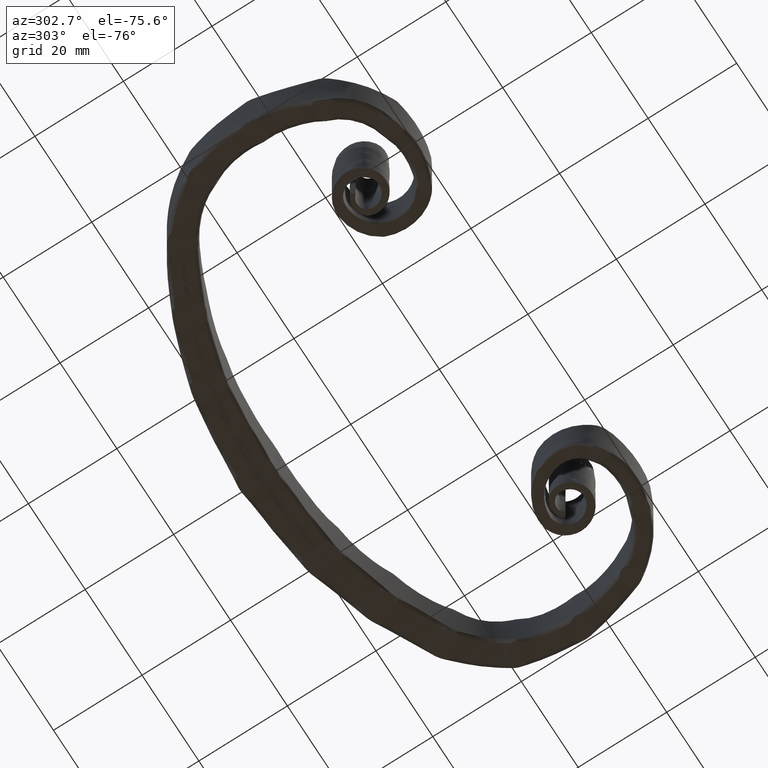
[diagram: clean part render]
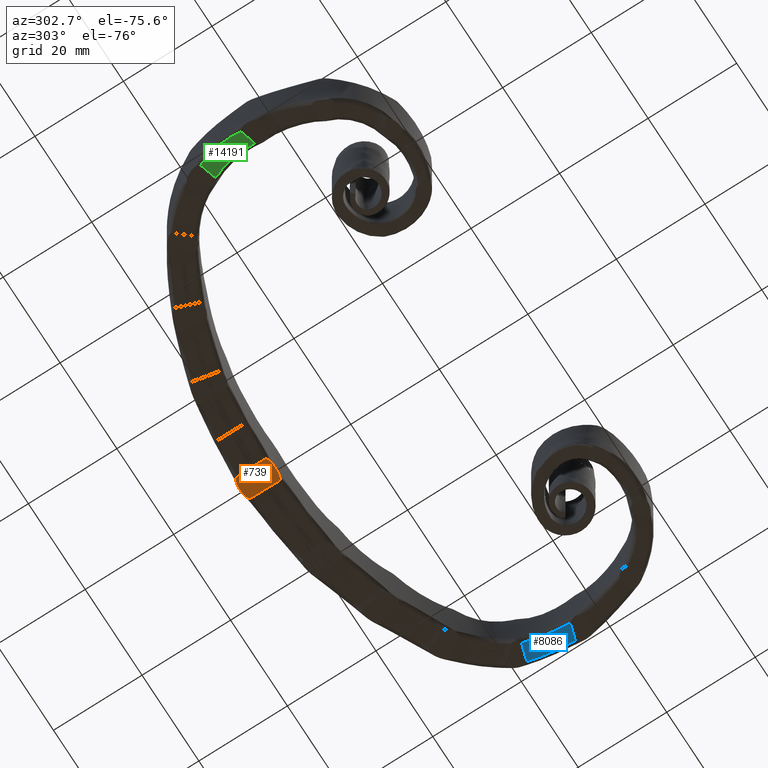
[diagram: same view with three faces highlighted in distinct colors, each labeled with its STEP entity id]
A machine part, auxiliary view with three faces highlighted in distinct colors.
Their STEP definitions:

[orange] entity #739 — the highlighted planar face has unit normal (0, 0, -1).
#39 = VERTEX_POINT ( 'NONE', #13460 ) ;
#733 = VECTOR ( 'NONE', #3460, 1000.000000000000000 ) ;
#739 = ADVANCED_FACE ( 'NONE', ( #3319 ), #15781, .T. ) ;
#801 = EDGE_CURVE ( 'NONE', #4417, #14457, #7179, .T. ) ;
#846 = CARTESIAN_POINT ( 'NONE',  ( 1.799667259817131271, 64.67704696247369611, -7.999999999999998224 ) ) ;
#903 = CARTESIAN_POINT ( 'NONE',  ( 2.387793784955803744, 64.16242560402947959, -8.000000000000000000 ) ) ;
#1032 = CARTESIAN_POINT ( 'NONE',  ( 2.435410458790838284, 57.66987541362531999, -7.999999999999994671 ) ) ;
#1075 = CARTESIAN_POINT ( 'NONE',  ( -2.618416260169672327, 64.05424198271327896, -7.999999999999994671 ) ) ;
#2048 = CARTESIAN_POINT ( 'NONE',  ( -0.08908066043442440518, 57.00005378626904928, -8.000000000000000000 ) ) ;
#2062 = CARTESIAN_POINT ( 'NONE',  ( -2.389685817727293049, 57.37523646133635680, -8.000000000000000000 ) ) ;
#2154 = VERTEX_POINT ( 'NONE', #6837 ) ;
#2184 = CARTESIAN_POINT ( 'NONE',  ( -2.163267278763167489, 57.23291819444619932, -8.000000000000000000 ) ) ;
#2237 = CARTESIAN_POINT ( 'NONE',  ( 0.7828630363283097804, 56.98405389752460337, -7.999999999999998224 ) ) ;
#2320 = CARTESIAN_POINT ( 'NONE',  ( -2.618416260169672327, 57.74192223055462136, -7.999999999999994671 ) ) ;
#2410 = ORIENTED_EDGE ( 'NONE', *, *, #9199, .T. ) ;
#2456 = CARTESIAN_POINT ( 'NONE',  ( 1.306455259439570415, 64.85155044938260005, -8.000000000000001776 ) ) ;
#2515 = CARTESIAN_POINT ( 'NONE',  ( -2.578344999929889081, 64.22825360911838288, -8.000000000000001776 ) ) ;
#2552 = CARTESIAN_POINT ( 'NONE',  ( -0.1184162601696624045, 65.00000000000000000, -8.000000000000000000 ) ) ;
#2950 = VERTEX_POINT ( 'NONE', #3985 ) ;
#3107 = VERTEX_POINT ( 'NONE', #12764 ) ;
#3292 = VERTEX_POINT ( 'NONE', #2320 ) ;
#3319 = FACE_OUTER_BOUND ( 'NONE', #3470, .T. ) ;
#3400 = CARTESIAN_POINT ( 'NONE',  ( 2.859460689795245703, -0.1495224214161162135, -7.999999999999994671 ) ) ;
#3453 = CARTESIAN_POINT ( 'NONE',  ( -0.8558266717507175825, 64.95197593053265450, -8.000000000000000000 ) ) ;
#3460 = DIRECTION ( 'NONE',  ( -0.007333850625920125023, 0.9999731069558804863, -7.523163845262640051E-37 ) ) ;
#3470 = EDGE_LOOP ( 'NONE', ( #2410, #11807, #4064, #4404, #9097, #10712, #6877, #5275, #10127, #6827 ) ) ;
#3500 = B_SPLINE_CURVE_WITH_KNOTS ( 'NONE', 3,
 ( #15855, #17115, #7465, #10379, #2062, #2184, #4721, #3539, #14226, #14417, #17239, #9075 ),
 .UNSPECIFIED., .F., .F.,
 ( 4, 2, 2, 2, 2, 4 ),
 ( 0.000000000000000000, 0.0002672670931287241479, 0.0005345341862574482959, 0.001069068372514897676, 0.001603602558772346948, 0.002138136745029796219 ),
 .UNSPECIFIED. ) ;
#3539 = CARTESIAN_POINT ( 'NONE',  ( -1.657098939495853740, 57.06632354337892821, -8.000000000000000000 ) ) ;
#3633 = CARTESIAN_POINT ( 'NONE',  ( -2.034079707715324759, 64.66298870964035927, -8.000000000000000000 ) ) ;
#3670 = CARTESIAN_POINT ( 'NONE',  ( 0.3736745635584453051, 56.99160782719640395, -8.000000000000000000 ) ) ;
#3772 = B_SPLINE_CURVE_WITH_KNOTS ( 'NONE', 3,
 ( #10279, #9094, #3670, #13172 ),
 .UNSPECIFIED., .F., .F.,
 ( 4, 4 ),
 ( 0.000000000000000000, 0.004350486140915422323 ),
 .UNSPECIFIED. ) ;
#3868 = EDGE_CURVE ( 'NONE', #3292, #14457, #3500, .T. ) ;
#3985 = CARTESIAN_POINT ( 'NONE',  ( -0.8558266717507175825, 64.95197593053265450, -8.000000000000000000 ) ) ;
#4064 = ORIENTED_EDGE ( 'NONE', *, *, #9592, .F. ) ;
#4333 = LINE ( 'NONE', #3400, #733 ) ;
#4404 = ORIENTED_EDGE ( 'NONE', *, *, #15221, .T. ) ;
#4417 = VERTEX_POINT ( 'NONE', #13795 ) ;
#4707 = B_SPLINE_CURVE_WITH_KNOTS ( 'NONE', 3,
 ( #15306, #5837, #10076, #9968 ),
 .UNSPECIFIED., .F., .F.,
 ( 4, 4 ),
 ( 0.000000000000000000, 0.004242691725775341559 ),
 .UNSPECIFIED. ) ;
#4721 = CARTESIAN_POINT ( 'NONE',  ( -1.997193237981633951, 57.16804899150837116, -8.000000000000000000 ) ) ;
#4739 = CARTESIAN_POINT ( 'NONE',  ( 0.6193265215525823875, 64.95738527985461985, -8.000000000000000000 ) ) ;
#4815 = CARTESIAN_POINT ( 'NONE',  ( -1.031320597229749891, 64.94052248029731800, -8.000000000000000000 ) ) ;
#4995 = CARTESIAN_POINT ( 'NONE',  ( 0.7948997253589114020, 64.94721918387261894, -8.000000000000001776 ) ) ;
#5247 = CARTESIAN_POINT ( 'NONE',  ( -0.3204210792814157771, 56.99413403145693735, -8.000000000000000000 ) ) ;
#5275 = ORIENTED_EDGE ( 'NONE', *, *, #11150, .F. ) ;
#5662 = CARTESIAN_POINT ( 'NONE',  ( -0.3642224765919079843, 64.98400885519093606, -8.000000000000000000 ) ) ;
#5837 = CARTESIAN_POINT ( 'NONE',  ( 0.1275006224425272450, 64.98581199131567132, -8.000000000000000000 ) ) ;
#6152 = B_SPLINE_CURVE_WITH_KNOTS ( 'NONE', 3,
 ( #3453, #4815, #13192, #13246, #13138, #3633, #14627, #6478, #15889, #2515, #6364, #1075 ),
 .UNSPECIFIED., .F., .F.,
 ( 4, 2, 2, 2, 2, 4 ),
 ( 2.276824562219559311E-18, 0.0005199267569084939800, 0.001039853513816985792, 0.001559780270725477386, 0.001819743649179722533, 0.002079707027633968114 ),
 .UNSPECIFIED. ) ;
#6306 = CARTESIAN_POINT ( 'NONE',  ( 2.238564288610711994, 64.38673862294498917, -8.000000000000000000 ) ) ;
#6364 = CARTESIAN_POINT ( 'NONE',  ( -2.618416260169668774, 64.14406795884652013, -8.000000000000001776 ) ) ;
#6478 = CARTESIAN_POINT ( 'NONE',  ( -2.405615313714081882, 64.42720292781019964, -8.000000000000000000 ) ) ;
#6827 = ORIENTED_EDGE ( 'NONE', *, *, #3868, .F. ) ;
#6837 = CARTESIAN_POINT ( 'NONE',  ( 2.434746165412473129, 57.76045204892510299, -7.999999999999994671 ) ) ;
#6877 = ORIENTED_EDGE ( 'NONE', *, *, #9760, .T. ) ;
#7147 = CARTESIAN_POINT ( 'NONE',  ( -2.618416260169672327, -0.1696096571686817045, -7.999999999999994671 ) ) ;
#7179 = B_SPLINE_CURVE_WITH_KNOTS ( 'NONE', 3,
 ( #14691, #5247, #13256, #11791 ),
 .UNSPECIFIED., .F., .F.,
 ( 4, 4 ),
 ( 0.000000000000000000, 0.004350486140915422323 ),
 .UNSPECIFIED. ) ;
#7465 = CARTESIAN_POINT ( 'NONE',  ( -2.576511884795692708, 57.56722399497661513, -8.000000000000000000 ) ) ;
#7519 = CARTESIAN_POINT ( 'NONE',  ( 2.434746165412473129, 57.76045204892510299, -7.999999999999994671 ) ) ;
#7683 = CARTESIAN_POINT ( 'NONE',  ( -2.618416260169672327, 64.05424198271327896, -7.999999999999994671 ) ) ;
#7697 = DIRECTION ( 'NONE',  ( -0.003666949966904749485, 0.9999932767163688396, 3.009265538105056689E-36 ) ) ;
#7704 = CARTESIAN_POINT ( 'NONE',  ( 1.478409437342587340, 57.07782137302078951, -8.000000000000003553 ) ) ;
#7805 = CARTESIAN_POINT ( 'NONE',  ( 0.6193265215525823875, 64.95738527985461985, -8.000000000000000000 ) ) ;
#7822 = CARTESIAN_POINT ( 'NONE',  ( 1.306362421419984265, 57.04187439176254060, -8.000000000000001776 ) ) ;
#9055 = CARTESIAN_POINT ( 'NONE',  ( 2.347106197370252723, 64.24631511365592473, -8.000000000000000000 ) ) ;
#9075 = CARTESIAN_POINT ( 'NONE',  ( -0.7830944702466455798, 56.98224627935083930, -8.000000000000000000 ) ) ;
#9094 = CARTESIAN_POINT ( 'NONE',  ( 0.1422969515620104153, 56.99583080673272661, -8.000000000000000000 ) ) ;
#9097 = ORIENTED_EDGE ( 'NONE', *, *, #13209, .T. ) ;
#9131 = CARTESIAN_POINT ( 'NONE',  ( 2.394124127739039487, 57.58545119108491406, -8.000000000000000000 ) ) ;
#9199 = EDGE_CURVE ( 'NONE', #3292, #16554, #12717, .T. ) ;
#9492 = CARTESIAN_POINT ( 'NONE',  ( 0.9586048466289541770, 56.99488443364019474, -8.000000000000000000 ) ) ;
#9592 = EDGE_CURVE ( 'NONE', #39, #2950, #11387, .T. ) ;
#9627 = VERTEX_POINT ( 'NONE', #11199 ) ;
#9760 = EDGE_CURVE ( 'NONE', #2154, #3107, #11508, .T. ) ;
#9915 = EDGE_CURVE ( 'NONE', #2950, #16554, #6152, .T. ) ;
#9968 = CARTESIAN_POINT ( 'NONE',  ( 0.6193265215525823875, 64.95738527985461985, -8.000000000000000000 ) ) ;
#10076 = CARTESIAN_POINT ( 'NONE',  ( 0.3734175050547168806, 64.97162398263132843, -8.000000000000000000 ) ) ;
#10127 = ORIENTED_EDGE ( 'NONE', *, *, #801, .T. ) ;
#10279 = CARTESIAN_POINT ( 'NONE',  ( -0.08908066043442441906, 57.00005378626904928, -8.000000000000000000 ) ) ;
#10379 = CARTESIAN_POINT ( 'NONE',  ( -2.460869647061282972, 57.42991125643208505, -8.000000000000000000 ) ) ;
#10545 = CARTESIAN_POINT ( 'NONE',  ( 2.208711092886074479, 57.39209866610493549, -8.000000000000001776 ) ) ;
#10712 = ORIENTED_EDGE ( 'NONE', *, *, #14115, .F. ) ;
#10716 = CARTESIAN_POINT ( 'NONE',  ( -0.7830944702466455798, 56.98224627935083930, -8.000000000000000000 ) ) ;
#11150 = EDGE_CURVE ( 'NONE', #4417, #3107, #3772, .T. ) ;
#11199 = CARTESIAN_POINT ( 'NONE',  ( 2.388452555247096321, 64.07260204359016598, -7.999999999999994671 ) ) ;
#11387 = B_SPLINE_CURVE_WITH_KNOTS ( 'NONE', 3,
 ( #2552, #5662, #15187, #15013 ),
 .UNSPECIFIED., .F., .F.,
 ( 4, 4 ),
 ( 0.000000000000000000, 0.004242691725775341559 ),
 .UNSPECIFIED. ) ;
#11508 = B_SPLINE_CURVE_WITH_KNOTS ( 'NONE', 3,
 ( #7519, #1032, #9131, #15847, #10545, #14638, #14523, #7704, #7822, #9492, #2237, #11736 ),
 .UNSPECIFIED., .F., .F.,
 ( 4, 2, 2, 2, 2, 4 ),
 ( 0.000000000000000000, 0.0002672670931287202448, 0.0005345341862574404896, 0.001069068372514892255, 0.001603602558772343912, 0.002138136745029795352 ),
 .UNSPECIFIED. ) ;
#11723 = CARTESIAN_POINT ( 'NONE',  ( 1.960979324394739542, 64.59864171944572320, -8.000000000000000000 ) ) ;
#11736 = CARTESIAN_POINT ( 'NONE',  ( 0.6050450828295482752, 56.98733655186240554, -8.000000000000000000 ) ) ;
#11791 = CARTESIAN_POINT ( 'NONE',  ( -0.7830944702466455798, 56.98224627935083930, -8.000000000000000000 ) ) ;
#11807 = ORIENTED_EDGE ( 'NONE', *, *, #9915, .F. ) ;
#11893 = CARTESIAN_POINT ( 'NONE',  ( 0.9673080534012852283, 64.92345144486338882, -8.000000000000000000 ) ) ;
#12116 = CARTESIAN_POINT ( 'NONE',  ( 2.388452555247096321, 64.07260204359016598, -7.999999999999994671 ) ) ;
#12717 = LINE ( 'NONE', #7147, #12877 ) ;
#12764 = CARTESIAN_POINT ( 'NONE',  ( 0.6050450828295482752, 56.98733655186240554, -8.000000000000000000 ) ) ;
#12877 = VECTOR ( 'NONE', #15410, 1000.000000000000000 ) ;
#13138 = CARTESIAN_POINT ( 'NONE',  ( -1.708585410326041165, 64.79192979580021472, -8.000000000000000000 ) ) ;
#13172 = CARTESIAN_POINT ( 'NONE',  ( 0.6050450828295482752, 56.98733655186240554, -8.000000000000000000 ) ) ;
#13192 = CARTESIAN_POINT ( 'NONE',  ( -1.203549979639744194, 64.91549096355039694, -7.999999999999998224 ) ) ;
#13209 = EDGE_CURVE ( 'NONE', #16937, #9627, #13908, .T. ) ;
#13246 = CARTESIAN_POINT ( 'NONE',  ( -1.542160753816544494, 64.84110464675694629, -8.000000000000000000 ) ) ;
#13256 = CARTESIAN_POINT ( 'NONE',  ( -0.5517614981284071352, 56.98821427664481831, -8.000000000000000000 ) ) ;
#13460 = CARTESIAN_POINT ( 'NONE',  ( -0.1184162601696624045, 65.00000000000000000, -8.000000000000000000 ) ) ;
#13795 = CARTESIAN_POINT ( 'NONE',  ( -0.08908066043442441906, 57.00005378626904928, -8.000000000000000000 ) ) ;
#13908 = B_SPLINE_CURVE_WITH_KNOTS ( 'NONE', 3,
 ( #7805, #4995, #11893, #2456, #14393, #846, #11723, #14453, #6306, #9055, #903, #12116 ),
 .UNSPECIFIED., .F., .F.,
 ( 4, 2, 2, 2, 2, 4 ),
 ( 2.276824562219557000E-18, 0.0005199267569084938716, 0.001039853513816985575, 0.001559780270725477603, 0.001819743649179722750, 0.002079707027633968114 ),
 .UNSPECIFIED. ) ;
#14115 = EDGE_CURVE ( 'NONE', #2154, #9627, #4333, .T. ) ;
#14226 = CARTESIAN_POINT ( 'NONE',  ( -1.484792920650240822, 57.03163929595982751, -8.000000000000000000 ) ) ;
#14295 = AXIS2_PLACEMENT_3D ( 'NONE', #2048, #15842, #7697 ) ;
#14393 = CARTESIAN_POINT ( 'NONE',  ( 1.473236081294908129, 64.80359745445859687, -8.000000000000000000 ) ) ;
#14417 = CARTESIAN_POINT ( 'NONE',  ( -1.136700080785226552, 56.98720100364806029, -8.000000000000001776 ) ) ;
#14453 = CARTESIAN_POINT ( 'NONE',  ( 2.172922091796084754, 64.44399230827754366, -8.000000000000000000 ) ) ;
#14457 = VERTEX_POINT ( 'NONE', #10716 ) ;
#14523 = CARTESIAN_POINT ( 'NONE',  ( 1.817748550415956954, 57.18203828622711171, -8.000000000000001776 ) ) ;
#14627 = CARTESIAN_POINT ( 'NONE',  ( -2.194812421779822387, 64.58340253658226970, -8.000000000000000000 ) ) ;
#14638 = CARTESIAN_POINT ( 'NONE',  ( 1.983342383916420815, 57.24812370684248464, -8.000000000000001776 ) ) ;
#14691 = CARTESIAN_POINT ( 'NONE',  ( -0.08908066043442441906, 57.00005378626904928, -8.000000000000000000 ) ) ;
#15013 = CARTESIAN_POINT ( 'NONE',  ( -0.8558266717507175825, 64.95197593053265450, -8.000000000000000000 ) ) ;
#15187 = CARTESIAN_POINT ( 'NONE',  ( -0.6100286930141535224, 64.96801771038188633, -8.000000000000000000 ) ) ;
#15221 = EDGE_CURVE ( 'NONE', #39, #16937, #4707, .T. ) ;
#15306 = CARTESIAN_POINT ( 'NONE',  ( -0.1184162601696624045, 65.00000000000000000, -8.000000000000000000 ) ) ;
#15410 = DIRECTION ( 'NONE',  ( -5.261709020643212301E-39, 1.000000000000000000, 6.212013110395918427E-21 ) ) ;
#15781 = PLANE ( 'NONE',  #14295 ) ;
#15842 = DIRECTION ( 'NONE',  ( 1.694043115214179254E-18, 6.212013110395918427E-21, -1.000000000000000000 ) ) ;
#15847 = CARTESIAN_POINT ( 'NONE',  ( 2.279492031089961124, 57.44729404240032977, -8.000000000000001776 ) ) ;
#15855 = CARTESIAN_POINT ( 'NONE',  ( -2.618416260169672327, 57.74192223055462136, -7.999999999999994671 ) ) ;
#15889 = CARTESIAN_POINT ( 'NONE',  ( -2.470835855234183143, 64.36946937213727438, -7.999999999999998224 ) ) ;
#16554 = VERTEX_POINT ( 'NONE', #7683 ) ;
#16937 = VERTEX_POINT ( 'NONE', #4739 ) ;
#17115 = CARTESIAN_POINT ( 'NONE',  ( -2.618416260169678100, 57.65134315930787778, -7.999999999999992895 ) ) ;
#17239 = CARTESIAN_POINT ( 'NONE',  ( -0.9608835671827682390, 56.97765962298405640, -8.000000000000000000 ) ) ;

[blue] entity #8086 — the highlighted cylindrical surface (partial cylindrical patch) has radius 13 mm, axis along (0.9553, 0.2956, 0).
#95 = CARTESIAN_POINT ( 'NONE',  ( 58.37612052038598165, 35.31930625375928656, -7.325847304405231242 ) ) ;
#422 = CARTESIAN_POINT ( 'NONE',  ( 55.41660349688721965, 31.72519923197467051, -6.998089840708979104 ) ) ;
#1790 = CARTESIAN_POINT ( 'NONE',  ( 54.68286669218089457, 34.64233873306784517, -7.414212271402829124 ) ) ;
#1853 = CARTESIAN_POINT ( 'NONE',  ( 55.15164658506068207, 32.99240776751735638, -7.098573772585381469 ) ) ;
#2814 = CARTESIAN_POINT ( 'NONE',  ( 59.23624399848142019, 28.94159877056575070, -7.430569837138675027 ) ) ;
#2935 = CARTESIAN_POINT ( 'NONE',  ( -3.755474565809203025, 13.03234534980047243, -20.00000000000001421 ) ) ;
#3007 = VERTEX_POINT ( 'NONE', #8112 ) ;
#3014 = CARTESIAN_POINT ( 'NONE',  ( -5.233471084445489474, 17.80890543954067340, -8.000000000000015987 ) ) ;
#3123 = AXIS2_PLACEMENT_3D ( 'NONE', #2935, #13804, #12369 ) ;
#3269 = CARTESIAN_POINT ( 'NONE',  ( 55.04441253100753784, 33.41244263804259873, -7.161413427010306698 ) ) ;
#3282 = CARTESIAN_POINT ( 'NONE',  ( -2.277478047172915687, 8.255785260060273245, -8.000000000000010658 ) ) ;
#3900 = VERTEX_POINT ( 'NONE', #8072 ) ;
#4070 = VECTOR ( 'NONE', #12855, 1000.000000000000114 ) ;
#4148 = EDGE_LOOP ( 'NONE', ( #15071, #12541, #14350, #8559 ) ) ;
#4178 = CARTESIAN_POINT ( 'NONE',  ( 59.22682645667688206, 27.28687588385269436, -7.999999999999994671 ) ) ;
#5131 = LINE ( 'NONE', #3282, #4070 ) ;
#5585 = LINE ( 'NONE', #3014, #12601 ) ;
#5746 = DIRECTION ( 'NONE',  ( 0.9553120179480422136, 0.2955993037272571788, 2.377940506694582037E-16 ) ) ;
#5760 = CARTESIAN_POINT ( 'NONE',  ( 55.70282890136620324, 29.57569303524487481, -7.114213216444279730 ) ) ;
#5886 = EDGE_CURVE ( 'NONE', #3007, #6914, #7735, .T. ) ;
#6914 = VERTEX_POINT ( 'NONE', #10014 ) ;
#7264 = CARTESIAN_POINT ( 'NONE',  ( 55.85825142335581717, 26.24454791592705760, -7.999999999999996447 ) ) ;
#7735 = B_SPLINE_CURVE_WITH_KNOTS ( 'NONE', 3,
 ( #17543, #13581, #8242, #11019, #95, #14946, #9722, #15178, #9613, #8189, #10962, #2814, #12310, #4178 ),
 .UNSPECIFIED., .F., .F.,
 ( 4, 2, 2, 2, 2, 2, 4 ),
 ( 7.152448122690982152E-18, 0.001308137953755657583, 0.002616275907511307793, 0.003924413861266957786, 0.005232551815022608646, 0.007848827722533891285, 0.01046510363004517566 ),
 .UNSPECIFIED. ) ;
#7751 = CARTESIAN_POINT ( 'NONE',  ( 55.85825142335581717, 26.24454791592705760, -7.999999999999996447 ) ) ;
#8072 = CARTESIAN_POINT ( 'NONE',  ( 54.06461979888364766, 36.15733406615620282, -8.000000000000000000 ) ) ;
#8086 = ADVANCED_FACE ( 'NONE', ( #9401 ), #14048, .F. ) ;
#8112 = CARTESIAN_POINT ( 'NONE',  ( 57.73090201111343589, 37.29178066458860741, -8.000000000000000000 ) ) ;
#8162 = EDGE_CURVE ( 'NONE', #10604, #6914, #5131, .T. ) ;
#8189 = CARTESIAN_POINT ( 'NONE',  ( 59.09071319992124671, 31.49163083412022246, -7.005620200751211613 ) ) ;
#8242 = CARTESIAN_POINT ( 'NONE',  ( 58.00726088508040590, 36.52513179473599791, -7.684631922952283922 ) ) ;
#8515 = CARTESIAN_POINT ( 'NONE',  ( 54.39229789811531646, 35.41912208451922339, -7.665798251737253821 ) ) ;
#8559 = ORIENTED_EDGE ( 'NONE', *, *, #5886, .T. ) ;
#8573 = CARTESIAN_POINT ( 'NONE',  ( 55.55250906790909937, 30.86963925529406438, -7.002210327183269634 ) ) ;
#9224 = EDGE_CURVE ( 'NONE', #10604, #3900, #9910, .T. ) ;
#9401 = FACE_OUTER_BOUND ( 'NONE', #4148, .T. ) ;
#9613 = CARTESIAN_POINT ( 'NONE',  ( 58.91476379457175483, 32.79059600079814629, -6.997568052274172778 ) ) ;
#9722 = CARTESIAN_POINT ( 'NONE',  ( 58.68121985331207924, 34.07086534142896994, -7.096905370265768731 ) ) ;
#9910 = B_SPLINE_CURVE_WITH_KNOTS ( 'NONE', 3,
 ( #7264, #16796, #10002, #11245, #5760, #16857, #8573, #422, #9947, #1853, #3269, #1790, #8515, #11363 ),
 .UNSPECIFIED., .F., .F.,
 ( 4, 2, 2, 2, 2, 2, 4 ),
 ( 0.000000000000000000, 0.002586659677266044729, 0.003879989515899061239, 0.005173319354532079049, 0.006466649193165094692, 0.007759979031798112069, 0.01034663870906416677 ),
 .UNSPECIFIED. ) ;
#9947 = CARTESIAN_POINT ( 'NONE',  ( 55.33726604768648372, 32.14991868831331345, -7.017178606343176028 ) ) ;
#10002 = CARTESIAN_POINT ( 'NONE',  ( 55.82702600751669308, 27.88304228997105483, -7.431274603709356441 ) ) ;
#10014 = CARTESIAN_POINT ( 'NONE',  ( 59.22682645667688206, 27.28687588385269436, -7.999999999999994671 ) ) ;
#10604 = VERTEX_POINT ( 'NONE', #7751 ) ;
#10962 = CARTESIAN_POINT ( 'NONE',  ( 59.16068166370187242, 30.63523962635382247, -7.095497010200381816 ) ) ;
#11019 = CARTESIAN_POINT ( 'NONE',  ( 58.25872150261714921, 35.72907257644097001, -7.431773316012720620 ) ) ;
#11245 = CARTESIAN_POINT ( 'NONE',  ( 55.73954004037197762, 29.14940354292138736, -7.178876413612837126 ) ) ;
#11363 = CARTESIAN_POINT ( 'NONE',  ( 54.06461979888364766, 36.15733406615620282, -8.000000000000000000 ) ) ;
#12310 = CARTESIAN_POINT ( 'NONE',  ( 59.24283385875263264, 28.09971377738711951, -7.678424153571256738 ) ) ;
#12369 = DIRECTION ( 'NONE',  ( 0.2955993037272572344, -0.9553120179480423246, 0.000000000000000000 ) ) ;
#12541 = ORIENTED_EDGE ( 'NONE', *, *, #9224, .T. ) ;
#12601 = VECTOR ( 'NONE', #5746, 1000.000000000000114 ) ;
#12855 = DIRECTION ( 'NONE',  ( 0.9553120179480422136, 0.2955993037272571788, 2.377940506694582037E-16 ) ) ;
#13581 = CARTESIAN_POINT ( 'NONE',  ( 57.87277704337665085, 36.91322802441939643, -7.831844146944620277 ) ) ;
#13804 = DIRECTION ( 'NONE',  ( 0.9553120179480423246, 0.2955993037272572344, 2.377940506694582037E-16 ) ) ;
#14048 = CYLINDRICAL_SURFACE ( 'NONE', #3123, 13.00000000000000000 ) ;
#14350 = ORIENTED_EDGE ( 'NONE', *, *, #17397, .T. ) ;
#14946 = CARTESIAN_POINT ( 'NONE',  ( 58.58734342401138662, 34.49039975289797155, -7.158587045722340392 ) ) ;
#15071 = ORIENTED_EDGE ( 'NONE', *, *, #8162, .F. ) ;
#15178 = CARTESIAN_POINT ( 'NONE',  ( 58.84471922355506734, 33.22159786923397462, -7.016390263565448038 ) ) ;
#16796 = CARTESIAN_POINT ( 'NONE',  ( 55.85830488563622964, 27.05560130222567139, -7.677169481785143468 ) ) ;
#16857 = CARTESIAN_POINT ( 'NONE',  ( 55.60927968244735098, 30.43675349308541911, -7.025661886577617921 ) ) ;
#17397 = EDGE_CURVE ( 'NONE', #3900, #3007, #5585, .T. ) ;
#17543 = CARTESIAN_POINT ( 'NONE',  ( 57.73090201111343589, 37.29178066458860741, -8.000000000000000000 ) ) ;

[green] entity #14191 — the highlighted cylindrical surface (partial cylindrical patch) has radius 13 mm, axis along (-0.9575, 0.2886, 0).
#90 = CARTESIAN_POINT ( 'NONE',  ( -58.27931547460848805, 35.30173055246253710, -7.431773316012718844 ) ) ;
#198 = CARTESIAN_POINT ( 'NONE',  ( -58.39370617015827492, 34.89111426278469708, -7.325847304405230354 ) ) ;
#293 = CYLINDRICAL_SURFACE ( 'NONE', #15213, 12.99999999999999822 ) ;
#305 = CARTESIAN_POINT ( 'NONE',  ( -55.80935186417686111, 25.83506564868208244, -7.999999999999996447 ) ) ;
#369 = CARTESIAN_POINT ( 'NONE',  ( -55.04810312762814561, 33.00873617715866715, -7.161413427010310251 ) ) ;
#488 = CARTESIAN_POINT ( 'NONE',  ( -54.08846736883156581, 35.76073944032774676, -8.000000000000000000 ) ) ;
#1443 = CARTESIAN_POINT ( 'NONE',  ( -57.76297084546805394, 36.86826756394076199, -8.000000000000000000 ) ) ;
#1556 = CARTESIAN_POINT ( 'NONE',  ( -58.84690799133291961, 32.79002565913098977, -7.016390263565452479 ) ) ;
#1678 = CARTESIAN_POINT ( 'NONE',  ( -54.41072271939808047, 35.02014416922502704, -7.665798251737255598 ) ) ;
#2244 = ORIENTED_EDGE ( 'NONE', *, *, #12842, .F. ) ;
#2756 = CARTESIAN_POINT ( 'NONE',  ( -59.18548058388090993, 26.85266095911910966, -7.999999999999994671 ) ) ;
#2976 = CARTESIAN_POINT ( 'NONE',  ( -55.33168960652556478, 31.74409843659506336, -7.017178606343177805 ) ) ;
#3095 = CARTESIAN_POINT ( 'NONE',  ( -55.67836364269030014, 29.16726102892740613, -7.114213216444277066 ) ) ;
#3325 = VERTEX_POINT ( 'NONE', #6520 ) ;
#3737 = EDGE_CURVE ( 'NONE', #17286, #3325, #14622, .T. ) ;
#4174 = CARTESIAN_POINT ( 'NONE',  ( -58.68964141886825558, 33.64046937189718278, -7.096905370265769619 ) ) ;
#4521 = CARTESIAN_POINT ( 'NONE',  ( -55.79014376107485873, 27.47374496116006526, -7.431274603709352000 ) ) ;
#5266 = VECTOR ( 'NONE', #13047, 1000.000000000000114 ) ;
#6347 = DIRECTION ( 'NONE',  ( -0.9574542078384573607, 0.2885852385213630855, 2.361738746558218037E-16 ) ) ;
#6427 = DIRECTION ( 'NONE',  ( -0.9574542078384574717, 0.2885852385213631410, 2.361738746558218530E-16 ) ) ;
#6520 = CARTESIAN_POINT ( 'NONE',  ( -57.76297084546805394, 36.86826756394076199, -8.000000000000000000 ) ) ;
#6863 = ORIENTED_EDGE ( 'NONE', *, *, #12973, .F. ) ;
#6868 = CARTESIAN_POINT ( 'NONE',  ( -59.20744878716316606, 27.66535959707246661, -7.678424153571257627 ) ) ;
#6984 = CARTESIAN_POINT ( 'NONE',  ( -58.91378977531527994, 32.35852168522644945, -6.997568052274174555 ) ) ;
#7267 = CARTESIAN_POINT ( 'NONE',  ( -55.15225382483301075, 32.58792616411527376, -7.098573772585386799 ) ) ;
#7575 = VERTEX_POINT ( 'NONE', #10094 ) ;
#8129 = CARTESIAN_POINT ( 'NONE',  ( -58.59884431689663842, 34.06068097651851900, -7.158587045722341280 ) ) ;
#8517 = CARTESIAN_POINT ( 'NONE',  ( -55.71194745096173051, 28.74071376681628465, -7.178876413612838014 ) ) ;
#8595 = CARTESIAN_POINT ( 'NONE',  ( -55.80935186417686111, 25.83506564868208244, -7.999999999999996447 ) ) ;
#8596 = CARTESIAN_POINT ( 'NONE',  ( 5.342593443091181449, 17.84768759975337105, -8.000000000000015987 ) ) ;
#8661 = VERTEX_POINT ( 'NONE', #8595 ) ;
#9272 = EDGE_LOOP ( 'NONE', ( #12125, #2244, #12397, #6863 ) ) ;
#9679 = FACE_OUTER_BOUND ( 'NONE', #9272, .T. ) ;
#9716 = CARTESIAN_POINT ( 'NONE',  ( -59.14389396926947740, 30.20141974995773992, -7.095497010200383592 ) ) ;
#9869 = CARTESIAN_POINT ( 'NONE',  ( -54.08846736883156581, 35.76073944032774676, -8.000000000000000000 ) ) ;
#9895 = VECTOR ( 'NONE', #6347, 1000.000000000000114 ) ;
#10094 = CARTESIAN_POINT ( 'NONE',  ( -59.18548058388090993, 26.85266095911910966, -7.999999999999994671 ) ) ;
#10956 = CARTESIAN_POINT ( 'NONE',  ( -59.08020803234892782, 31.05830106501950638, -7.005620200751209836 ) ) ;
#11123 = CARTESIAN_POINT ( 'NONE',  ( -55.40791009305007009, 31.31880855325402280, -6.998089840708979104 ) ) ;
#11148 = EDGE_CURVE ( 'NONE', #8661, #7575, #14561, .T. ) ;
#12125 = ORIENTED_EDGE ( 'NONE', *, *, #11148, .T. ) ;
#12191 = CARTESIAN_POINT ( 'NONE',  ( -57.90206581376271799, 36.48868461391024454, -7.831844146944620277 ) ) ;
#12308 = B_SPLINE_CURVE_WITH_KNOTS ( 'NONE', 3,
 ( #305, #13845, #4521, #8517, #3095, #15413, #15172, #11123, #2976, #7267, #369, #13904, #1678, #488 ),
 .UNSPECIFIED., .F., .F.,
 ( 4, 2, 2, 2, 2, 2, 4 ),
 ( 0.000000000000000000, 0.002586659677266045596, 0.003879989515899069479, 0.005173319354532092927, 0.006466649193165117243, 0.007759979031798139824, 0.01034663870906416677 ),
 .UNSPECIFIED. ) ;
#12397 = ORIENTED_EDGE ( 'NONE', *, *, #3737, .F. ) ;
#12414 = CARTESIAN_POINT ( 'NONE',  ( -58.03369979900960374, 36.09961253690920557, -7.684631922952283034 ) ) ;
#12537 = B_SPLINE_CURVE_WITH_KNOTS ( 'NONE', 3,
 ( #1443, #12191, #12414, #90, #198, #8129, #4174, #1556, #6984, #10956, #9716, #13576, #6868, #2756 ),
 .UNSPECIFIED., .F., .F.,
 ( 4, 2, 2, 2, 2, 2, 4 ),
 ( 7.152448122690996019E-18, 0.001308137953755648692, 0.002616275907511290012, 0.003924413861266930897, 0.005232551815022573084, 0.007848827722533873938, 0.01046510363004517566 ),
 .UNSPECIFIED. ) ;
#12842 = EDGE_CURVE ( 'NONE', #3325, #7575, #12537, .T. ) ;
#12973 = EDGE_CURVE ( 'NONE', #8661, #17286, #12308, .T. ) ;
#13047 = DIRECTION ( 'NONE',  ( -0.9574542078384573607, 0.2885852385213630855, 2.361738746558218037E-16 ) ) ;
#13576 = CARTESIAN_POINT ( 'NONE',  ( -59.20703336289753338, 28.50727027845169914, -7.430569837138676803 ) ) ;
#13845 = CARTESIAN_POINT ( 'NONE',  ( -55.81535346940425057, 26.64609683120181316, -7.677169481785140803 ) ) ;
#13904 = CARTESIAN_POINT ( 'NONE',  ( -54.69558688611600417, 34.24125071971033663, -7.414212271402830901 ) ) ;
#14191 = ADVANCED_FACE ( 'NONE', ( #9679 ), #293, .F. ) ;
#14271 = CARTESIAN_POINT ( 'NONE',  ( 3.899667250484364800, 13.06041656056109268, -20.00000000000001421 ) ) ;
#14401 = DIRECTION ( 'NONE',  ( -0.2885852385213631410, -0.9574542078384573607, 0.000000000000000000 ) ) ;
#14494 = CARTESIAN_POINT ( 'NONE',  ( 2.456741057877548151, 8.273145521368817867, -8.000000000000010658 ) ) ;
#14561 = LINE ( 'NONE', #14494, #9895 ) ;
#14622 = LINE ( 'NONE', #8596, #5266 ) ;
#15172 = CARTESIAN_POINT ( 'NONE',  ( -55.53753746008695913, 30.46227487402850187, -7.002210327183269634 ) ) ;
#15213 = AXIS2_PLACEMENT_3D ( 'NONE', #14271, #6427, #14401 ) ;
#15413 = CARTESIAN_POINT ( 'NONE',  ( -55.59113182837246114, 30.02898440622880472, -7.025661886577621473 ) ) ;
#17286 = VERTEX_POINT ( 'NONE', #9869 ) ;